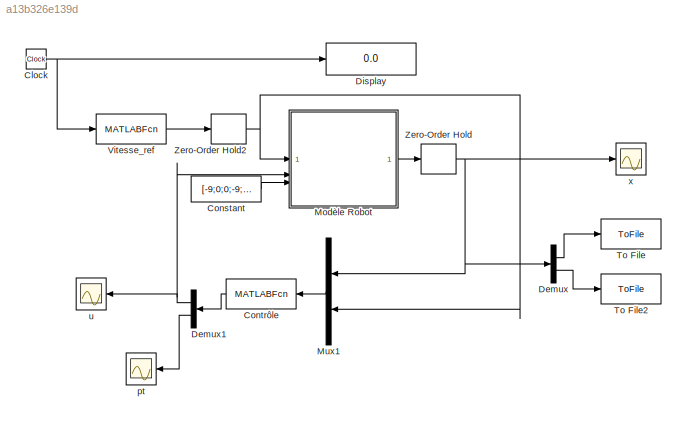
MODEL mdl_a13b326e139d
KIND model
CONFIG AbsTol = 1e-6
CONFIG EnableMultiTasking = on
CONFIG FixedStep = 0.0001
CONFIG MaxStep = auto
CONFIG MinStep = auto
CONFIG RelTol = 1e-6
CONFIG SampleTimeConstraint = Unconstrained
CONFIG SolverName = VariableStepAuto
CONFIG StartTime = 0.0
CONFIG StopTime = 30
BLOCK [Clock] Clock
BLOCK [Constant] Constant
  Value = [-9;0;0;-9;-2;0]
BLOCK [MATLABFcn] Contrôle
  MATLABFcn = control
  OutputDimensions = 4
BLOCK [Demux] Demux
  Outputs = [3;3]
BLOCK [Demux] Demux1
  Outputs = [2;2]
BLOCK [Display] Display
  Decimation = 1
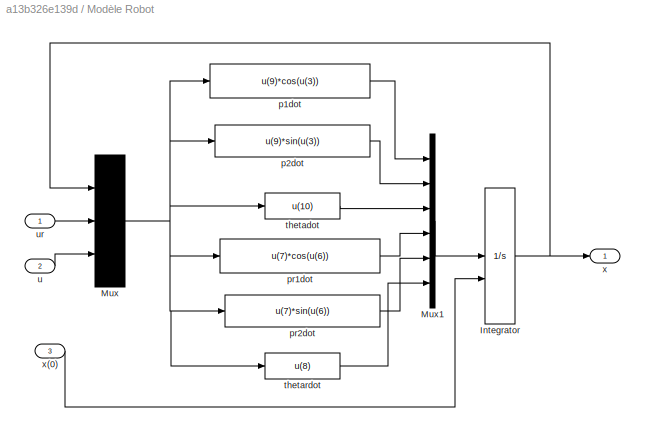
BLOCK [SubSystem] Modèle Robot
BLOCK [Integrator] Modèle Robot/Integrator
  InitialCondition = init
  InitialConditionSource = external
BLOCK [Mux] Modèle Robot/Mux
  Inputs = [6 2 2]
BLOCK [Mux] Modèle Robot/Mux1
  DisplayOption = bar
  Inputs = 6
BLOCK [Fcn] Modèle Robot/p1dot
  Expr = u(9)*cos(u(3))
BLOCK [Fcn] Modèle Robot/p2dot
  Expr = u(9)*sin(u(3))
BLOCK [Fcn] Modèle Robot/pr1dot
  Expr = u(7)*cos(u(6))
BLOCK [Fcn] Modèle Robot/pr2dot
  Expr = u(7)*sin(u(6))
BLOCK [Fcn] Modèle Robot/thetadot
  Expr = u(10)
BLOCK [Fcn] Modèle Robot/thetardot
  Expr = u(8)
BLOCK [Inport] Modèle Robot/u
  Port = 2
BLOCK [Inport] Modèle Robot/ur
BLOCK [Outport] Modèle Robot/x
BLOCK [Inport] Modèle Robot/x(0)
  Port = 3
BLOCK [Mux] Mux1
  DisplayOption = bar
  Inputs = 2
BLOCK [ToFile] To File
  Filename = cart.mat
BLOCK [ToFile] To File2
  Filename = ref.mat
BLOCK [MATLABFcn] Vitesse_ref 
  MATLABFcn = ur
  OutputDimensions = 2
BLOCK [ZeroOrderHold] Zero-Order Hold
  SampleTime = 0.01
BLOCK [ZeroOrderHold] Zero-Order Hold2
  SampleTime = 0.01
BLOCK [Scope] pt
  Floating = off
  NumInputPorts = 1
  ScopeSpecificationString = Simulink.scopes.TimeScopeBlockCfg('CurrentConfiguration', extmgr.ConfigurationSet(extmgr.Configuration('Core','General UI',true),extmgr.Configuration('Core','Source UI',true),extmgr.Configuration('Sources','WiredSimulink',true,'DataLoggingSaveFormat','StructureWithTime','DataLoggingLimitDataPoints',true,'DataLoggingDecimation','1','DataLoggingDecimateData',true,'DataLoggingVariableName','ScopeData...<+1748ch>
BLOCK [Scope] u
  Floating = off
  NumInputPorts = 1
  ScopeSpecificationString = Simulink.scopes.TimeScopeBlockCfg('CurrentConfiguration', extmgr.ConfigurationSet(extmgr.Configuration('Core','General UI',true),extmgr.Configuration('Core','Source UI',true),extmgr.Configuration('Sources','WiredSimulink',true,'DataLoggingSaveFormat','StructureWithTime','DataLoggingLimitDataPoints',true,'DataLoggingDecimation','1','DataLoggingDecimateData',true),extmgr.Configuration('Visuals','Tim...<+1714ch>
BLOCK [Scope] x
  Floating = off
  NumInputPorts = 1
  ScopeSpecificationString = Simulink.scopes.TimeScopeBlockCfg('CurrentConfiguration', extmgr.ConfigurationSet(extmgr.Configuration('Core','General UI',true),extmgr.Configuration('Core','Source UI',true),extmgr.Configuration('Sources','WiredSimulink',true,'DataLoggingVariableName','ScopeData1','DataLoggingSaveFormat','StructureWithTime','DataLoggingLimitDataPoints',true,'DataLoggingDecimation','1','DataLoggingDecimateData',tr...<+1843ch>
NET Clock:1 -> Display:1, Vitesse_ref :1
LINE Constant:1 -> Modèle Robot:3
LINE Contrôle:1 -> Demux1:1
NET Demux1:1 -> Modèle Robot:2, u:1
LINE Demux1:2 -> pt:1
LINE Demux:1 -> To File:1
LINE Demux:2 -> To File2:1
NET Modèle Robot/Integrator:1 -> Modèle Robot/Mux:1, Modèle Robot/x:1
LINE Modèle Robot/Mux1:1 -> Modèle Robot/Integrator:1
NET Modèle Robot/Mux:1 -> Modèle Robot/p1dot:1, Modèle Robot/p2dot:1, Modèle Robot/pr1dot:1, Modèle Robot/pr2dot:1, Modèle Robot/thetadot:1, Modèle Robot/thetardot:1
LINE Modèle Robot/p1dot:1 -> Modèle Robot/Mux1:1
LINE Modèle Robot/p2dot:1 -> Modèle Robot/Mux1:2
LINE Modèle Robot/pr1dot:1 -> Modèle Robot/Mux1:4
LINE Modèle Robot/pr2dot:1 -> Modèle Robot/Mux1:5
LINE Modèle Robot/thetadot:1 -> Modèle Robot/Mux1:3
LINE Modèle Robot/thetardot:1 -> Modèle Robot/Mux1:6
LINE Modèle Robot/u:1 -> Modèle Robot/Mux:3
LINE Modèle Robot/ur:1 -> Modèle Robot/Mux:2
LINE Modèle Robot/x(0):1 -> Modèle Robot/Integrator:2
LINE Modèle Robot:1 -> Zero-Order Hold:1
LINE Mux1:1 -> Contrôle:1
LINE Vitesse_ref :1 -> Zero-Order Hold2:1
NET Zero-Order Hold2:1 -> Modèle Robot:1, Mux1:2
NET Zero-Order Hold:1 -> Demux:1, Mux1:1, x:1
note: NET lines group one-source signal fan-out (src -> all destinations, sorted); 1:1 wires keep LINE
